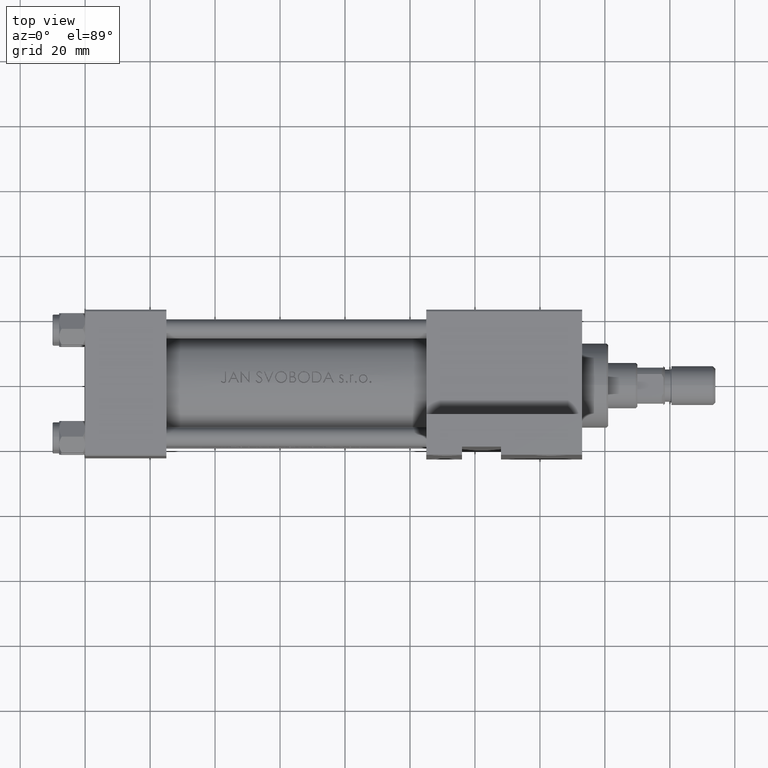
[diagram: clean part render]
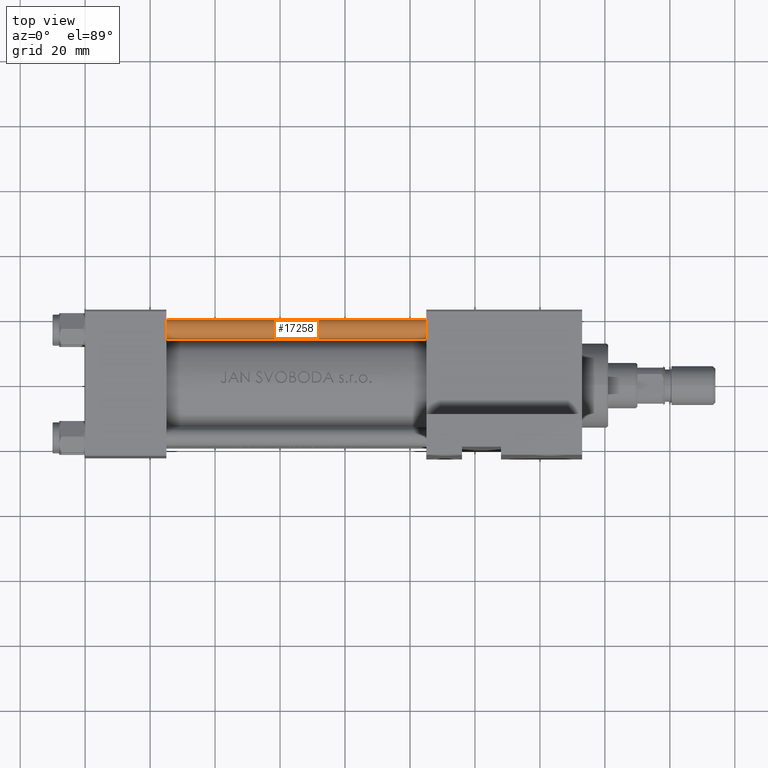
[diagram: same view with one face highlighted and labeled with its STEP entity id]
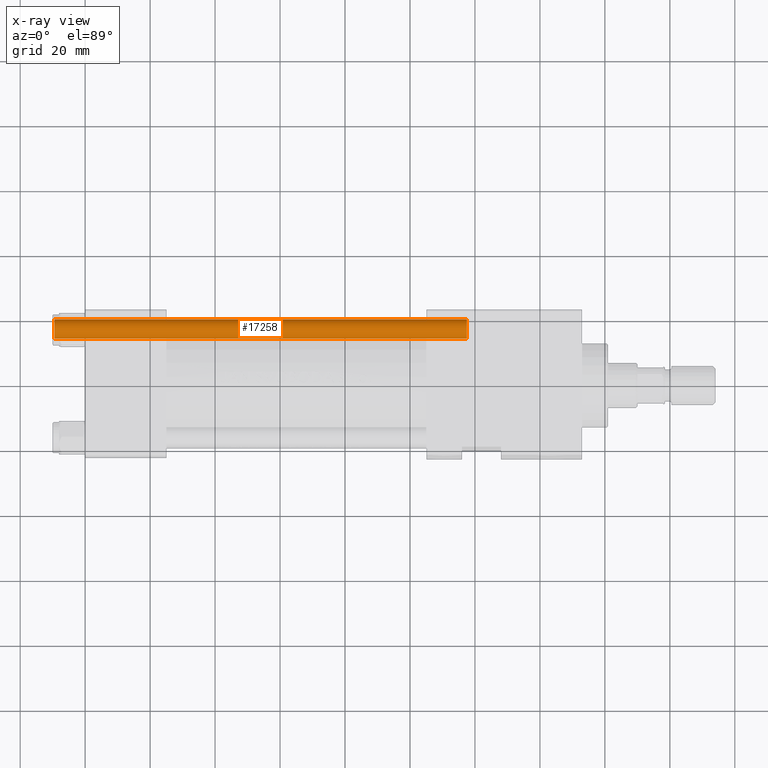
[diagram: x-ray of the same camera — body ghosted, the highlighted face saturated]
A machine part, top view. The second image highlights one B-rep face of the part: STEP entity #17258.
The next image is the same camera in x-ray: the body ghosted, the highlighted face saturated — about 0% of this face is hidden behind the body in this view.
In plain terms, the highlighted cylindrical surface (edge-blend (fillet) strip) has radius 3 mm, axis along (1, -0, 0).
Its self-contained STEP definition (entity closure, byte-faithful):
#1316 = FACE_OUTER_BOUND ( 'NONE', #17096, .T. ) ;
#1798 = DIRECTION ( 'NONE',  ( -0.000000000000000000, -0.000000000000000000, -1.000000000000000000 ) ) ;
#2810 = AXIS2_PLACEMENT_3D ( 'NONE', #35359, #37657, #30591 ) ;
#5509 = ORIENTED_EDGE ( 'NONE', *, *, #42244, .T. ) ;
#6860 = VECTOR ( 'NONE', #26575, 1000.000000000000000 ) ;
#7867 = EDGE_CURVE ( 'NONE', #44887, #36371, #13163, .T. ) ;
#7883 = ORIENTED_EDGE ( 'NONE', *, *, #32059, .T. ) ;
#8279 = CIRCLE ( 'NONE', #2810, 3.000000000000000444 ) ;
#8581 = VERTEX_POINT ( 'NONE', #41691 ) ;
#8869 = CARTESIAN_POINT ( 'NONE',  ( 0.000000000000000000, 0.000000000000000000, 128.0000000000000000 ) ) ;
#12890 = CARTESIAN_POINT ( 'NONE',  ( 0.000000000000000000, 0.000000000000000000, 0.5000000000000281997 ) ) ;
#13162 = CARTESIAN_POINT ( 'NONE',  ( -3.000000000000000444, 0.000000000000000000, 127.4999999999999716 ) ) ;
#13163 = LINE ( 'NONE', #35808, #28559 ) ;
#15543 = AXIS2_PLACEMENT_3D ( 'NONE', #8869, #1798, #31756 ) ;
#17043 = DIRECTION ( 'NONE',  ( 1.000000000000000000, 0.000000000000000000, 0.000000000000000000 ) ) ;
#17096 = EDGE_LOOP ( 'NONE', ( #31683, #7883, #21785, #5509 ) ) ;
#17258 = ADVANCED_FACE ( 'NONE', ( #1316 ), #35168, .T. ) ;
#20101 = CARTESIAN_POINT ( 'NONE',  ( 3.000000000000000444, 3.673940397442060361E-16, 0.5000000000000281997 ) ) ;
#21785 = ORIENTED_EDGE ( 'NONE', *, *, #37158, .T. ) ;
#26575 = DIRECTION ( 'NONE',  ( -0.000000000000000000, -0.000000000000000000, -1.000000000000000000 ) ) ;
#28559 = VECTOR ( 'NONE', #46055, 1000.000000000000000 ) ;
#30591 = DIRECTION ( 'NONE',  ( 1.000000000000000000, 0.000000000000000000, 0.000000000000000000 ) ) ;
#31683 = ORIENTED_EDGE ( 'NONE', *, *, #7867, .F. ) ;
#31756 = DIRECTION ( 'NONE',  ( -1.000000000000000000, 0.000000000000000000, 0.000000000000000000 ) ) ;
#32059 = EDGE_CURVE ( 'NONE', #44887, #42957, #8279, .T. ) ;
#34821 = DIRECTION ( 'NONE',  ( -0.000000000000000000, -0.000000000000000000, 1.000000000000000000 ) ) ;
#35168 = CYLINDRICAL_SURFACE ( 'NONE', #15543, 3.000000000000000444 ) ;
#35359 = CARTESIAN_POINT ( 'NONE',  ( 0.000000000000000000, 0.000000000000000000, 127.4999999999999716 ) ) ;
#35808 = CARTESIAN_POINT ( 'NONE',  ( 3.000000000000000444, 3.673940397442060361E-16, 128.0000000000000000 ) ) ;
#36371 = VERTEX_POINT ( 'NONE', #20101 ) ;
#37049 = LINE ( 'NONE', #40943, #6860 ) ;
#37158 = EDGE_CURVE ( 'NONE', #42957, #8581, #37049, .T. ) ;
#37275 = CIRCLE ( 'NONE', #41141, 3.000000000000000444 ) ;
#37657 = DIRECTION ( 'NONE',  ( 0.000000000000000000, 0.000000000000000000, -1.000000000000000000 ) ) ;
#40943 = CARTESIAN_POINT ( 'NONE',  ( -3.000000000000000444, 0.000000000000000000, 128.0000000000000000 ) ) ;
#41141 = AXIS2_PLACEMENT_3D ( 'NONE', #12890, #34821, #17043 ) ;
#41691 = CARTESIAN_POINT ( 'NONE',  ( -3.000000000000000444, 0.000000000000000000, 0.5000000000000281997 ) ) ;
#42244 = EDGE_CURVE ( 'NONE', #8581, #36371, #37275, .T. ) ;
#42401 = CARTESIAN_POINT ( 'NONE',  ( 3.000000000000000444, 3.673940397442060361E-16, 127.4999999999999716 ) ) ;
#42957 = VERTEX_POINT ( 'NONE', #13162 ) ;
#44887 = VERTEX_POINT ( 'NONE', #42401 ) ;
#46055 = DIRECTION ( 'NONE',  ( -0.000000000000000000, -0.000000000000000000, -1.000000000000000000 ) ) ;